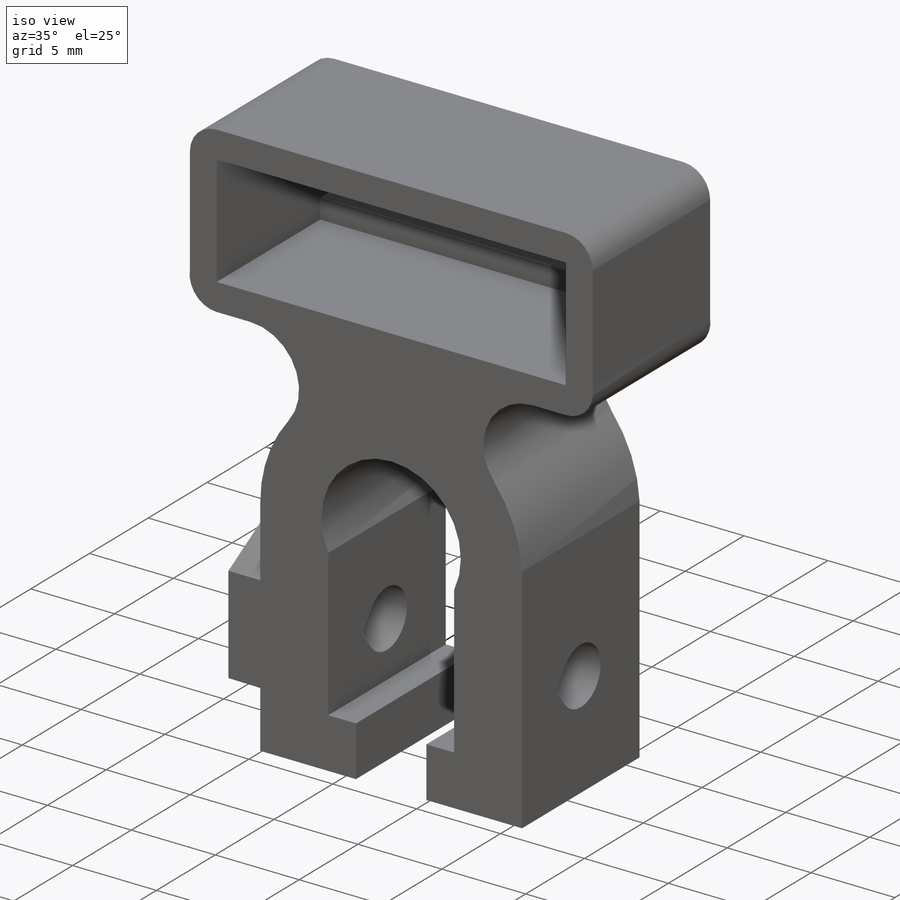
[diagram: iso view]
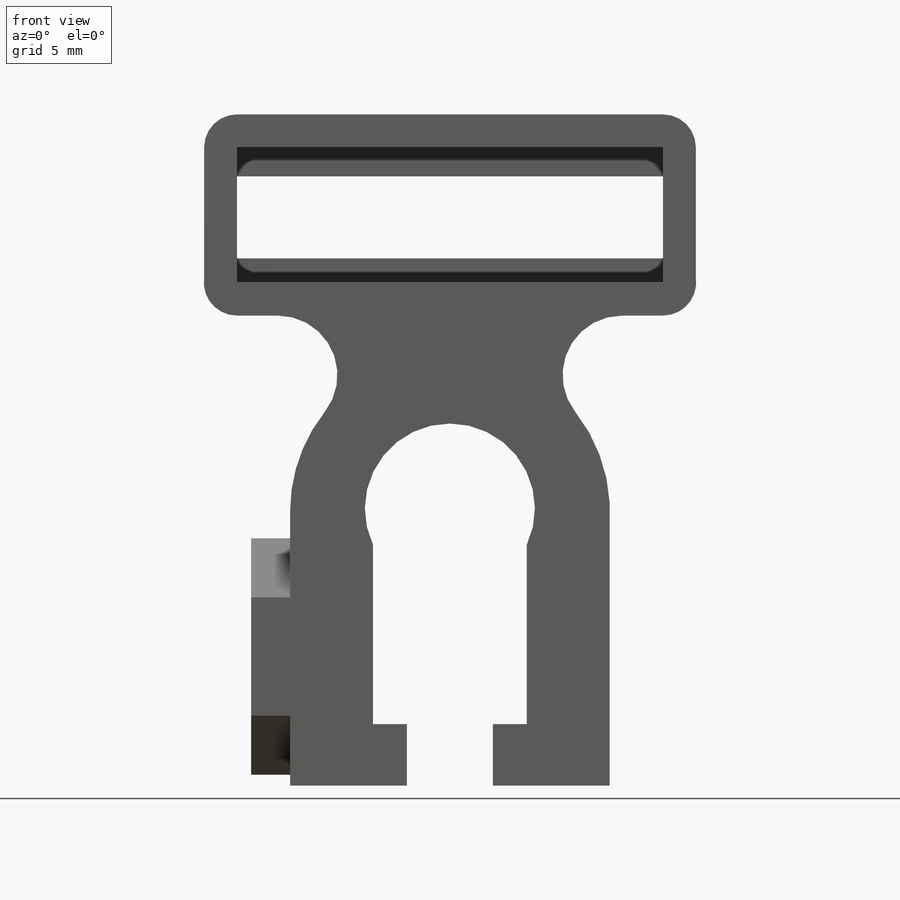
[diagram: front view]
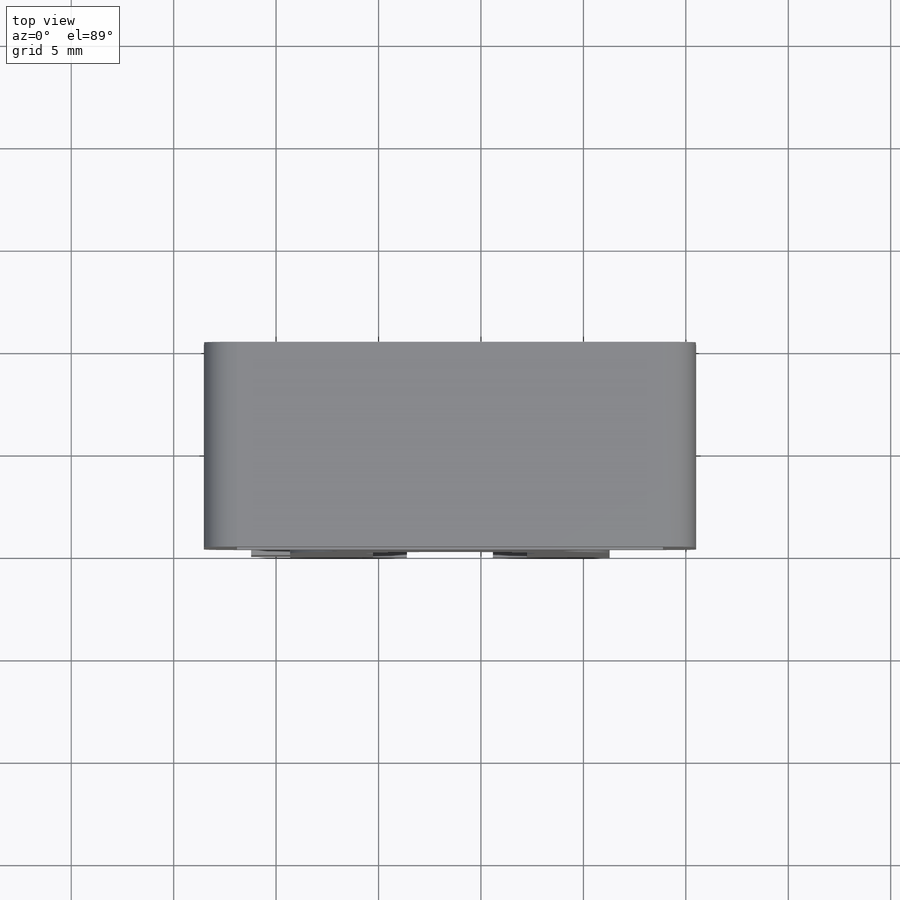
[diagram: top view]
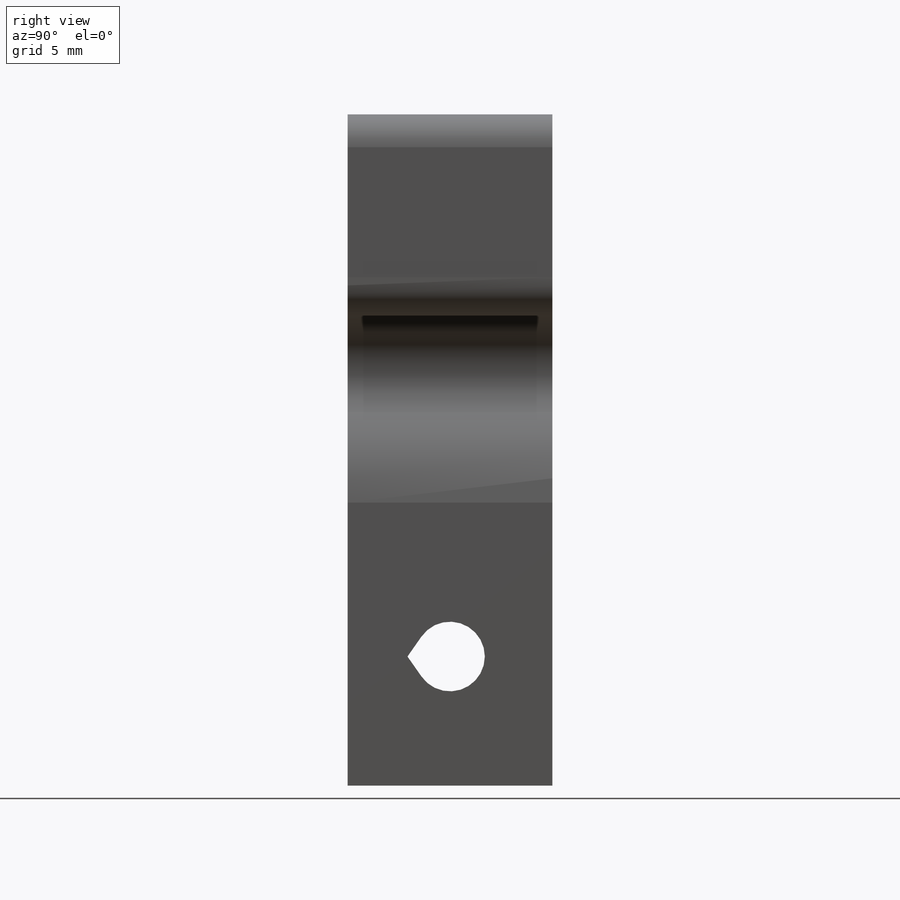
[diagram: right view]
SOLIDWORKS PART (.sldprt)
format: sldprt  version: not decoded by parser v0  size: 763,392 bytes
history: native  units: mm
features: sketch x8, extrude x6, cut_extrude x2, material x1, move_body x1 (+12 scaffold rows collapsed; 1 parser-record rows omitted)
feature tree (31):
  scaffold x12  (default folders/planes/origin — collapsed)
  material  "Material <not specified>"
  sketch  "Sketch1"  dims[D1=~11.744404mm]
  extrude  "Boss-Extrude1"  Depth=10mm
  sketch  "Sketch19"  dims[c1.D1=3.4mm c1.D2=3.4mm c1.D3=3.4mm c1.D5=3.4mm c1.D6=3.4mm c1.D7=3.4mm c2.D1=5.0mm c2.D2=5.0mm c2.D3=5.0mm c2.D4=~1.962948mm c3.D4=35.0deg c3.D8=~1.962948mm c4.D8=~49.105992deg c5.D8=~1.69248mm c6.D8=35.0deg c6.D9=~1.69248mm c7.D9=35.0deg c7.D1=0.0mm c7.D2=0.0mm c7.D3=0.0mm]
  cut_extrude  "Cut-Extrude6"  [1 undecoded]
  sketch  "Sketch21"  dims[c1.D1=6.0mm c1.D3=~3.491745mm c2.D3=0.0deg c2.D2=2.0mm]
  extrude  "Boss-Extrude4"  Depth=1.9mm
  sketch  "Sketch22"  dims[D2=~3.059956mm D1=0.0mm]
  cut_extrude  "Cut-Extrude7"  Depth=1.1mm
  sketch  "Sketch31"  dims[c1.D1=20.8mm c1.D2=6.6mm c2.D1=9.9mm c2.D2=9.9mm c2.D3=6.35mm c2.D4=1.6mm c2.D5=1.6mm c2.D6=1.6mm c3.D4=1.6mm c3.D7=1.6mm c3.D8=1.6mm c3.D9=1.6mm c3.D3=2.0mm]
  extrude  "Boss-Extrude5"  [1 undecoded]
  sketch  "Sketch32"  dims[c1.D1=0.0mm c1.D2=0.5mm c1.D3=0.5mm c2.D2=1.5mm c2.D3=1.5mm]
  extrude  "Boss-Extrude6"  Depth=1.2mm
  sketch  "Sketch33"  dims[D1=0.0mm D2=3.0mm]
  extrude  "Boss-Extrude7"  Depth=1.65mm
  sketch  "Sketch34"  dims[D1=0.0mm]
  extrude  "Boss-Extrude8"  Depth=1.65mm
  move_body  "Body-Move/Copy1"
  parser-record x1  (decoder bookkeeping rows leaked as tree rows — omitted from the tree; the rows remain in map.json)
decode coverage: 14 of 17 modeling features carry decoded parameters
note: ~ marks probable driven/reference dimensions
note: 2 parameter values undecoded
note: suppression state not decoded; provenance and decode notes live in map.json
